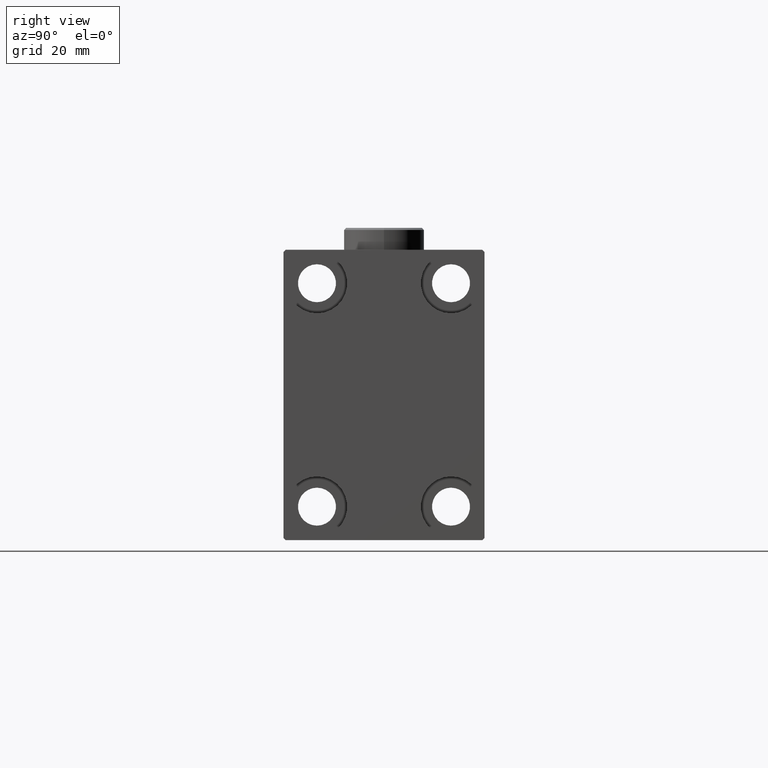
[diagram: clean part render]
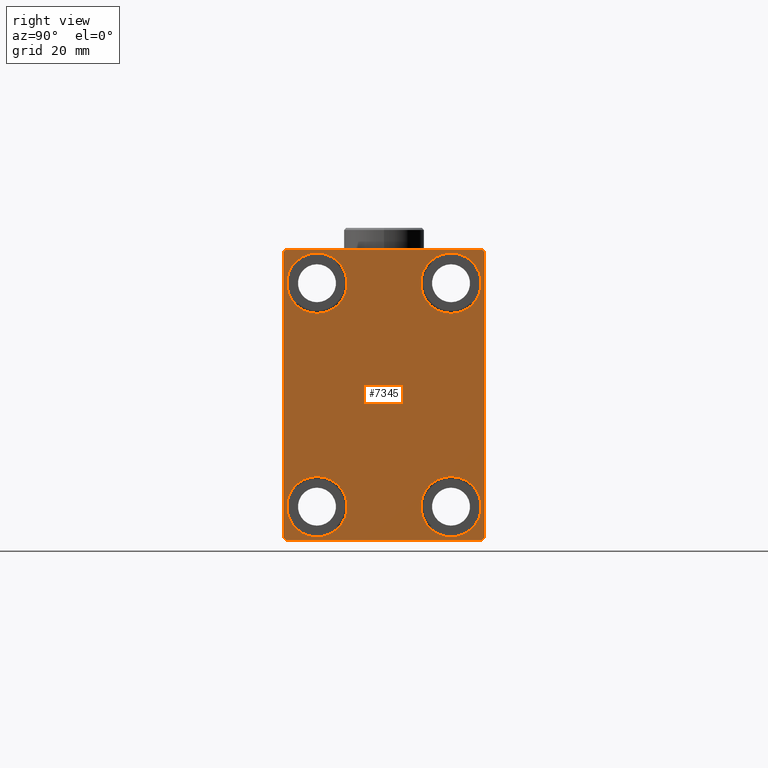
[diagram: same view with one face highlighted and labeled with its STEP entity id]
A machine part, right view. The second image highlights one B-rep face of the part: STEP entity #7345.
In plain terms, the highlighted planar face has unit normal (1, 0, 0).
Its self-contained STEP definition (entity closure, byte-faithful):
#901 = DIRECTION ( 'NONE',  ( -1.000000000000000000, -0.000000000000000000, -0.000000000000000000 ) ) ;
#1085 = EDGE_CURVE ( 'NONE', #41071, #43376, #16233, .T. ) ;
#1610 = LINE ( 'NONE', #43234, #17960 ) ;
#1912 = AXIS2_PLACEMENT_3D ( 'NONE', #35851, #12303, #36316 ) ;
#2567 = CARTESIAN_POINT ( 'NONE',  ( 130.0000000000000000, -21.99999999999999289, 32.49999999999999289 ) ) ;
#2800 = EDGE_CURVE ( 'NONE', #8566, #38484, #29421, .T. ) ;
#2865 = ORIENTED_EDGE ( 'NONE', *, *, #31306, .T. ) ;
#2929 = DIRECTION ( 'NONE',  ( 0.000000000000000000, 0.000000000000000000, -1.000000000000000000 ) ) ;
#3177 = CARTESIAN_POINT ( 'NONE',  ( 130.0000000000000000, 0.000000000000000000, 0.000000000000000000 ) ) ;
#3721 = ORIENTED_EDGE ( 'NONE', *, *, #4286, .T. ) ;
#4023 = CARTESIAN_POINT ( 'NONE',  ( 130.0000000000000000, -14.99999999999999645, 31.75000000000000000 ) ) ;
#4286 = EDGE_CURVE ( 'NONE', #23950, #8738, #8277, .T. ) ;
#4559 = EDGE_CURVE ( 'NONE', #23516, #26093, #23778, .T. ) ;
#4721 = EDGE_CURVE ( 'NONE', #41564, #24608, #35528, .T. ) ;
#5800 = VERTEX_POINT ( 'NONE', #2567 ) ;
#6139 = LINE ( 'NONE', #15997, #7968 ) ;
#6367 = CARTESIAN_POINT ( 'NONE',  ( 130.0000000000000000, -22.50000000000000711, 32.49999999999999289 ) ) ;
#7030 = LINE ( 'NONE', #16663, #12300 ) ;
#7340 = CARTESIAN_POINT ( 'NONE',  ( 130.0000000000000000, -22.00000000000003197, -32.50000000000000711 ) ) ;
#7345 = ADVANCED_FACE ( 'NONE', ( #41394, #10058, #24031, #34534, #37066 ), #33868, .T. ) ;
#7531 = CARTESIAN_POINT ( 'NONE',  ( 130.0000000000000000, -15.00000000000000355, -25.00000000000000000 ) ) ;
#7668 = VERTEX_POINT ( 'NONE', #23935 ) ;
#7673 = ORIENTED_EDGE ( 'NONE', *, *, #19124, .T. ) ;
#7885 = DIRECTION ( 'NONE',  ( -0.000000000000000000, -0.7071067811865622277, 0.7071067811865328068 ) ) ;
#7968 = VECTOR ( 'NONE', #40240, 1000.000000000000114 ) ;
#8277 = CIRCLE ( 'NONE', #35274, 6.749999999999999112 ) ;
#8342 = CARTESIAN_POINT ( 'NONE',  ( 130.0000000000000000, 27.24999999999955236, 27.25000000000068567 ) ) ;
#8566 = VERTEX_POINT ( 'NONE', #23313 ) ;
#8738 = VERTEX_POINT ( 'NONE', #35379 ) ;
#9472 = DIRECTION ( 'NONE',  ( 0.000000000000000000, 0.000000000000000000, 1.000000000000000000 ) ) ;
#10058 = FACE_BOUND ( 'NONE', #21450, .T. ) ;
#10251 = VECTOR ( 'NONE', #24587, 1000.000000000000114 ) ;
#10268 = ORIENTED_EDGE ( 'NONE', *, *, #41232, .T. ) ;
#10887 = CARTESIAN_POINT ( 'NONE',  ( 130.0000000000000000, 22.00000000000002132, 32.50000000000000000 ) ) ;
#11052 = DIRECTION ( 'NONE',  ( 0.000000000000000000, 0.000000000000000000, 1.000000000000000000 ) ) ;
#12104 = CARTESIAN_POINT ( 'NONE',  ( 130.0000000000000000, 27.25000000000000711, -27.25000000000000711 ) ) ;
#12300 = VECTOR ( 'NONE', #34263, 1000.000000000000000 ) ;
#12303 = DIRECTION ( 'NONE',  ( -1.000000000000000000, -0.000000000000000000, -0.000000000000000000 ) ) ;
#12485 = VERTEX_POINT ( 'NONE', #42964 ) ;
#12670 = EDGE_CURVE ( 'NONE', #24608, #7668, #22398, .T. ) ;
#13159 = DIRECTION ( 'NONE',  ( 0.000000000000000000, 0.000000000000000000, 1.000000000000000000 ) ) ;
#13376 = CARTESIAN_POINT ( 'NONE',  ( 130.0000000000000000, -14.99999999999999645, 25.00000000000000000 ) ) ;
#13398 = DIRECTION ( 'NONE',  ( -1.000000000000000000, -0.000000000000000000, -0.000000000000000000 ) ) ;
#14868 = DIRECTION ( 'NONE',  ( 0.000000000000000000, 0.000000000000000000, 1.000000000000000000 ) ) ;
#15180 = DIRECTION ( 'NONE',  ( 0.000000000000000000, 1.000000000000000000, 0.000000000000000000 ) ) ;
#15523 = AXIS2_PLACEMENT_3D ( 'NONE', #3177, #17146, #44364 ) ;
#15529 = ORIENTED_EDGE ( 'NONE', *, *, #2800, .T. ) ;
#15997 = CARTESIAN_POINT ( 'NONE',  ( 130.0000000000000000, -27.25000000000033040, -27.24999999999957367 ) ) ;
#16213 = ORIENTED_EDGE ( 'NONE', *, *, #34772, .T. ) ;
#16233 = CIRCLE ( 'NONE', #27204, 6.749999999999999112 ) ;
#16663 = CARTESIAN_POINT ( 'NONE',  ( 130.0000000000000000, 22.50000000000000000, -32.50000000000000711 ) ) ;
#16832 = ORIENTED_EDGE ( 'NONE', *, *, #29155, .T. ) ;
#17090 = CIRCLE ( 'NONE', #27348, 6.749999999999999112 ) ;
#17146 = DIRECTION ( 'NONE',  ( 1.000000000000000000, 0.000000000000000000, 0.000000000000000000 ) ) ;
#17324 = ORIENTED_EDGE ( 'NONE', *, *, #26266, .T. ) ;
#17846 = DIRECTION ( 'NONE',  ( 0.000000000000000000, 0.000000000000000000, 1.000000000000000000 ) ) ;
#17960 = VECTOR ( 'NONE', #32953, 1000.000000000000000 ) ;
#18598 = ORIENTED_EDGE ( 'NONE', *, *, #4559, .T. ) ;
#18705 = CIRCLE ( 'NONE', #1912, 6.749999999999999112 ) ;
#19124 = EDGE_CURVE ( 'NONE', #43376, #41071, #17090, .T. ) ;
#19200 = DIRECTION ( 'NONE',  ( -0.000000000000000000, 0.7071067811865474617, 0.7071067811865474617 ) ) ;
#20045 = EDGE_LOOP ( 'NONE', ( #15529, #16213 ) ) ;
#20086 = EDGE_LOOP ( 'NONE', ( #39614, #2865 ) ) ;
#20210 = CIRCLE ( 'NONE', #24591, 6.749999999999999112 ) ;
#20632 = VERTEX_POINT ( 'NONE', #34763 ) ;
#21176 = AXIS2_PLACEMENT_3D ( 'NONE', #42378, #39177, #11052 ) ;
#21409 = VECTOR ( 'NONE', #2929, 1000.000000000000000 ) ;
#21450 = EDGE_LOOP ( 'NONE', ( #23312, #7673 ) ) ;
#21612 = EDGE_LOOP ( 'NONE', ( #17324, #3721 ) ) ;
#22398 = LINE ( 'NONE', #12104, #41029 ) ;
#22868 = CARTESIAN_POINT ( 'NONE',  ( 130.0000000000000000, 14.99999999999999645, -18.25000000000000355 ) ) ;
#23246 = DIRECTION ( 'NONE',  ( -1.000000000000000000, -0.000000000000000000, -0.000000000000000000 ) ) ;
#23312 = ORIENTED_EDGE ( 'NONE', *, *, #1085, .T. ) ;
#23313 = CARTESIAN_POINT ( 'NONE',  ( 130.0000000000000000, 15.00000000000000355, 18.25000000000000355 ) ) ;
#23477 = CARTESIAN_POINT ( 'NONE',  ( 130.0000000000000000, 15.00000000000000355, 25.00000000000000000 ) ) ;
#23516 = VERTEX_POINT ( 'NONE', #32090 ) ;
#23778 = LINE ( 'NONE', #6367, #21409 ) ;
#23935 = CARTESIAN_POINT ( 'NONE',  ( 130.0000000000000000, 22.50000000000000000, -32.00000000000002132 ) ) ;
#23950 = VERTEX_POINT ( 'NONE', #22868 ) ;
#23995 = ORIENTED_EDGE ( 'NONE', *, *, #37554, .T. ) ;
#24031 = FACE_BOUND ( 'NONE', #20045, .T. ) ;
#24587 = DIRECTION ( 'NONE',  ( 0.000000000000000000, -0.7071067811865474617, -0.7071067811865474617 ) ) ;
#24591 = AXIS2_PLACEMENT_3D ( 'NONE', #7531, #34991, #17846 ) ;
#24608 = VERTEX_POINT ( 'NONE', #43333 ) ;
#24777 = ORIENTED_EDGE ( 'NONE', *, *, #35823, .T. ) ;
#25032 = CARTESIAN_POINT ( 'NONE',  ( 130.0000000000000000, -22.50000000000000711, -32.50000000000000711 ) ) ;
#25969 = ORIENTED_EDGE ( 'NONE', *, *, #4721, .T. ) ;
#26093 = VERTEX_POINT ( 'NONE', #29526 ) ;
#26266 = EDGE_CURVE ( 'NONE', #8738, #23950, #18705, .T. ) ;
#26508 = AXIS2_PLACEMENT_3D ( 'NONE', #42632, #41559, #39210 ) ;
#26899 = EDGE_CURVE ( 'NONE', #29211, #33348, #39906, .T. ) ;
#27204 = AXIS2_PLACEMENT_3D ( 'NONE', #44223, #34172, #9472 ) ;
#27348 = AXIS2_PLACEMENT_3D ( 'NONE', #13376, #23246, #13159 ) ;
#28341 = EDGE_LOOP ( 'NONE', ( #16832, #10268, #18598, #23995, #25969, #34947, #24777, #31055 ) ) ;
#29155 = EDGE_CURVE ( 'NONE', #33348, #5800, #1610, .T. ) ;
#29211 = VERTEX_POINT ( 'NONE', #40042 ) ;
#29421 = CIRCLE ( 'NONE', #26508, 6.749999999999999112 ) ;
#29526 = CARTESIAN_POINT ( 'NONE',  ( 130.0000000000000000, -22.50000000000000711, -32.00000000000002132 ) ) ;
#30342 = DIRECTION ( 'NONE',  ( 0.000000000000000000, 0.000000000000000000, 1.000000000000000000 ) ) ;
#31055 = ORIENTED_EDGE ( 'NONE', *, *, #26899, .T. ) ;
#31306 = EDGE_CURVE ( 'NONE', #20632, #12485, #20210, .T. ) ;
#31390 = CIRCLE ( 'NONE', #21176, 6.749999999999999112 ) ;
#32090 = CARTESIAN_POINT ( 'NONE',  ( 130.0000000000000000, -22.50000000000000711, 31.99999999999999289 ) ) ;
#32953 = DIRECTION ( 'NONE',  ( 0.000000000000000000, -1.000000000000000000, -1.541976423090495387E-16 ) ) ;
#33348 = VERTEX_POINT ( 'NONE', #10887 ) ;
#33868 = PLANE ( 'NONE',  #15523 ) ;
#34074 = VECTOR ( 'NONE', #7885, 1000.000000000000000 ) ;
#34172 = DIRECTION ( 'NONE',  ( -1.000000000000000000, -0.000000000000000000, -0.000000000000000000 ) ) ;
#34263 = DIRECTION ( 'NONE',  ( 0.000000000000000000, -1.067522139062650425E-16, 1.000000000000000000 ) ) ;
#34534 = FACE_BOUND ( 'NONE', #20086, .T. ) ;
#34736 = CARTESIAN_POINT ( 'NONE',  ( 130.0000000000000000, -14.99999999999999645, 18.25000000000000355 ) ) ;
#34763 = CARTESIAN_POINT ( 'NONE',  ( 130.0000000000000000, -15.00000000000000355, -18.25000000000000355 ) ) ;
#34772 = EDGE_CURVE ( 'NONE', #38484, #8566, #40012, .T. ) ;
#34910 = AXIS2_PLACEMENT_3D ( 'NONE', #23477, #13398, #30342 ) ;
#34947 = ORIENTED_EDGE ( 'NONE', *, *, #12670, .T. ) ;
#34991 = DIRECTION ( 'NONE',  ( -1.000000000000000000, -0.000000000000000000, -0.000000000000000000 ) ) ;
#35274 = AXIS2_PLACEMENT_3D ( 'NONE', #36123, #901, #14868 ) ;
#35379 = CARTESIAN_POINT ( 'NONE',  ( 130.0000000000000000, 14.99999999999999645, -31.75000000000000000 ) ) ;
#35528 = LINE ( 'NONE', #25032, #44757 ) ;
#35749 = CARTESIAN_POINT ( 'NONE',  ( 130.0000000000000000, -27.25000000000000000, 27.25000000000000000 ) ) ;
#35823 = EDGE_CURVE ( 'NONE', #7668, #29211, #7030, .T. ) ;
#35851 = CARTESIAN_POINT ( 'NONE',  ( 130.0000000000000000, 14.99999999999999645, -25.00000000000000000 ) ) ;
#36123 = CARTESIAN_POINT ( 'NONE',  ( 130.0000000000000000, 14.99999999999999645, -25.00000000000000000 ) ) ;
#36316 = DIRECTION ( 'NONE',  ( 0.000000000000000000, 0.000000000000000000, 1.000000000000000000 ) ) ;
#37066 = FACE_OUTER_BOUND ( 'NONE', #28341, .T. ) ;
#37554 = EDGE_CURVE ( 'NONE', #26093, #41564, #6139, .T. ) ;
#38484 = VERTEX_POINT ( 'NONE', #38946 ) ;
#38946 = CARTESIAN_POINT ( 'NONE',  ( 130.0000000000000000, 15.00000000000000355, 31.75000000000000000 ) ) ;
#39177 = DIRECTION ( 'NONE',  ( -1.000000000000000000, -0.000000000000000000, -0.000000000000000000 ) ) ;
#39210 = DIRECTION ( 'NONE',  ( 0.000000000000000000, 0.000000000000000000, 1.000000000000000000 ) ) ;
#39297 = EDGE_CURVE ( 'NONE', #12485, #20632, #31390, .T. ) ;
#39614 = ORIENTED_EDGE ( 'NONE', *, *, #39297, .T. ) ;
#39906 = LINE ( 'NONE', #8342, #34074 ) ;
#40012 = CIRCLE ( 'NONE', #34910, 6.749999999999999112 ) ;
#40042 = CARTESIAN_POINT ( 'NONE',  ( 130.0000000000000000, 22.49999999999999289, 32.00000000000004974 ) ) ;
#40240 = DIRECTION ( 'NONE',  ( -0.000000000000000000, 0.7071067811865376918, -0.7071067811865573427 ) ) ;
#41029 = VECTOR ( 'NONE', #19200, 1000.000000000000114 ) ;
#41071 = VERTEX_POINT ( 'NONE', #34736 ) ;
#41232 = EDGE_CURVE ( 'NONE', #5800, #23516, #42382, .T. ) ;
#41394 = FACE_BOUND ( 'NONE', #21612, .T. ) ;
#41559 = DIRECTION ( 'NONE',  ( -1.000000000000000000, -0.000000000000000000, -0.000000000000000000 ) ) ;
#41564 = VERTEX_POINT ( 'NONE', #7340 ) ;
#42378 = CARTESIAN_POINT ( 'NONE',  ( 130.0000000000000000, -15.00000000000000355, -25.00000000000000000 ) ) ;
#42382 = LINE ( 'NONE', #35749, #10251 ) ;
#42632 = CARTESIAN_POINT ( 'NONE',  ( 130.0000000000000000, 15.00000000000000355, 25.00000000000000000 ) ) ;
#42964 = CARTESIAN_POINT ( 'NONE',  ( 130.0000000000000000, -15.00000000000000355, -31.75000000000000000 ) ) ;
#43234 = CARTESIAN_POINT ( 'NONE',  ( 130.0000000000000000, 22.49999999999999289, 32.50000000000000000 ) ) ;
#43333 = CARTESIAN_POINT ( 'NONE',  ( 130.0000000000000000, 22.00000000000000000, -32.50000000000000711 ) ) ;
#43376 = VERTEX_POINT ( 'NONE', #4023 ) ;
#44223 = CARTESIAN_POINT ( 'NONE',  ( 130.0000000000000000, -14.99999999999999645, 25.00000000000000000 ) ) ;
#44364 = DIRECTION ( 'NONE',  ( 0.000000000000000000, 0.000000000000000000, -1.000000000000000000 ) ) ;
#44757 = VECTOR ( 'NONE', #15180, 1000.000000000000000 ) ;